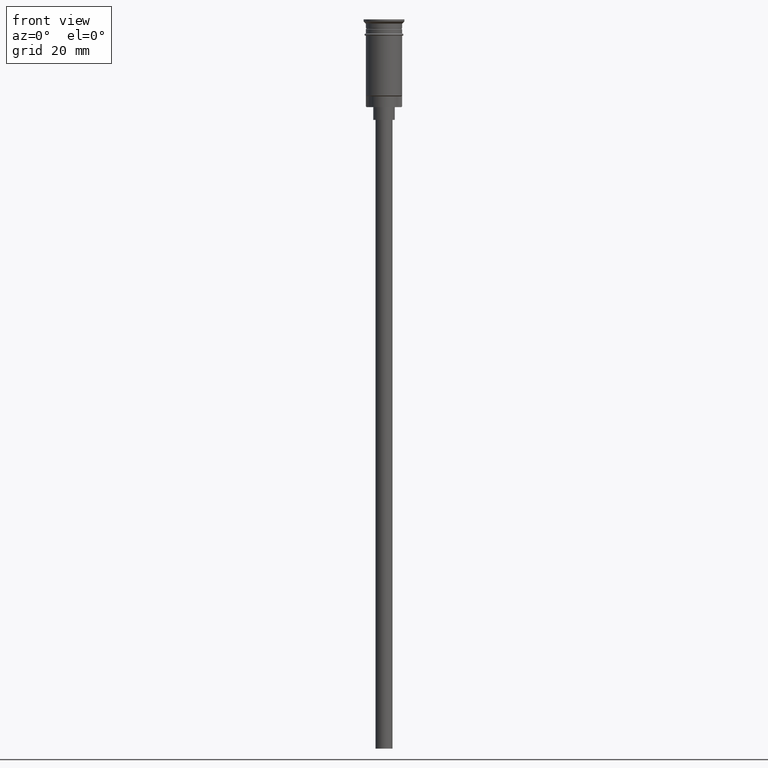
[diagram: clean part render]
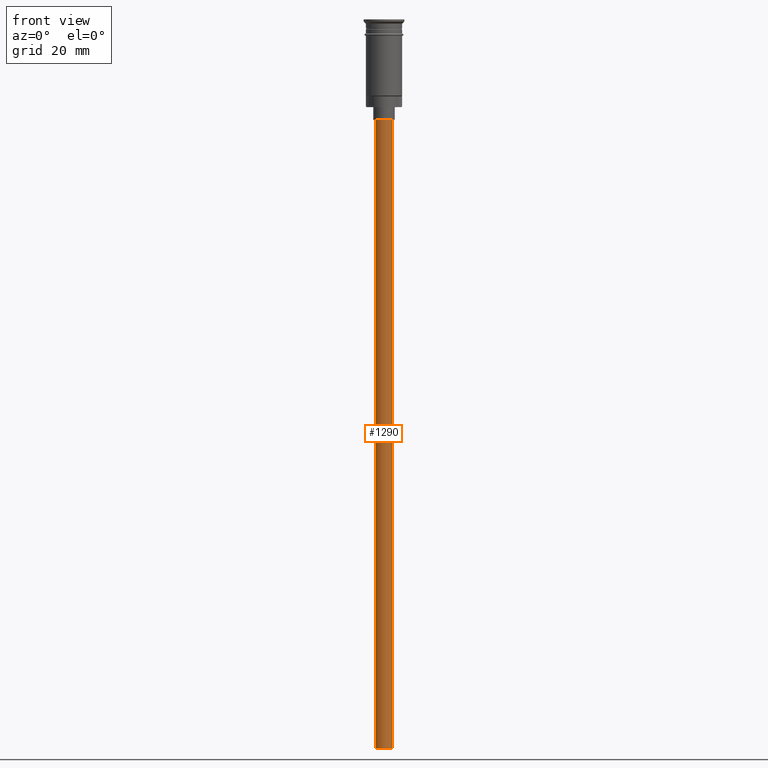
[diagram: same view with one face highlighted and labeled with its STEP entity id]
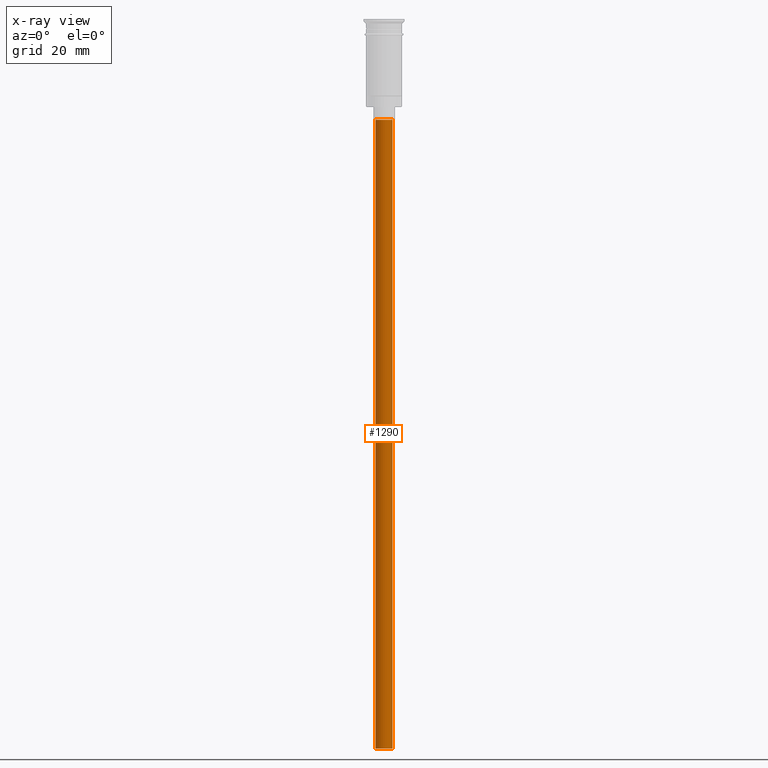
[diagram: x-ray of the same camera — body ghosted, the highlighted face saturated]
A machine part, front view. The second image highlights one B-rep face of the part: STEP entity #1290.
The next image is the same camera in x-ray: the body ghosted, the highlighted face saturated — about 0% of this face is hidden behind the body in this view.
In plain terms, the highlighted cylindrical surface (edge-blend (fillet) strip) has radius 2 mm, axis along (-0, -0, 1).
Its self-contained STEP definition (entity closure, byte-faithful):
#72 = ORIENTED_EDGE ( 'NONE', *, *, #785, .F. ) ;
#76 = VERTEX_POINT ( 'NONE', #768 ) ;
#175 = DIRECTION ( 'NONE',  ( 0.000000000000000000, 0.000000000000000000, -1.000000000000000000 ) ) ;
#176 = DIRECTION ( 'NONE',  ( -0.000000000000000000, -0.000000000000000000, 1.000000000000000000 ) ) ;
#214 = CARTESIAN_POINT ( 'NONE',  ( -2.000000000000000000, 2.449293598294706414E-16, -23.49999999999999645 ) ) ;
#281 = DIRECTION ( 'NONE',  ( -1.000000000000000000, 0.000000000000000000, 0.000000000000000000 ) ) ;
#324 = CARTESIAN_POINT ( 'NONE',  ( -2.000000000000000000, 2.449293598294706414E-16, -170.4999999999999716 ) ) ;
#329 = ORIENTED_EDGE ( 'NONE', *, *, #930, .T. ) ;
#392 = ORIENTED_EDGE ( 'NONE', *, *, #1205, .F. ) ;
#424 = ORIENTED_EDGE ( 'NONE', *, *, #733, .T. ) ;
#448 = AXIS2_PLACEMENT_3D ( 'NONE', #1229, #1500, #999 ) ;
#471 = DIRECTION ( 'NONE',  ( 1.000000000000000000, 0.000000000000000000, 0.000000000000000000 ) ) ;
#495 = CARTESIAN_POINT ( 'NONE',  ( -2.000000000000000000, 2.449293598294706414E-16, -170.4999999999999716 ) ) ;
#526 = CIRCLE ( 'NONE', #709, 2.000000000000000000 ) ;
#559 = CYLINDRICAL_SURFACE ( 'NONE', #939, 2.000000000000000000 ) ;
#638 = EDGE_LOOP ( 'NONE', ( #72, #392, #424, #329 ) ) ;
#645 = CARTESIAN_POINT ( 'NONE',  ( 0.000000000000000000, 0.000000000000000000, -170.4999999999999716 ) ) ;
#663 = CARTESIAN_POINT ( 'NONE',  ( 2.000000000000000000, 0.000000000000000000, -170.4999999999999716 ) ) ;
#709 = AXIS2_PLACEMENT_3D ( 'NONE', #645, #175, #281 ) ;
#733 = EDGE_CURVE ( 'NONE', #76, #856, #1408, .T. ) ;
#768 = CARTESIAN_POINT ( 'NONE',  ( 2.000000000000000000, 0.000000000000000000, -170.4999999999999716 ) ) ;
#785 = EDGE_CURVE ( 'NONE', #1476, #1242, #1573, .T. ) ;
#825 = DIRECTION ( 'NONE',  ( -0.000000000000000000, -0.000000000000000000, 1.000000000000000000 ) ) ;
#830 = DIRECTION ( 'NONE',  ( -0.000000000000000000, -0.000000000000000000, 1.000000000000000000 ) ) ;
#856 = VERTEX_POINT ( 'NONE', #955 ) ;
#930 = EDGE_CURVE ( 'NONE', #856, #1242, #1171, .T. ) ;
#939 = AXIS2_PLACEMENT_3D ( 'NONE', #1313, #830, #471 ) ;
#955 = CARTESIAN_POINT ( 'NONE',  ( 2.000000000000000000, 0.000000000000000000, -23.49999999999999645 ) ) ;
#995 = VECTOR ( 'NONE', #176, 1000.000000000000000 ) ;
#999 = DIRECTION ( 'NONE',  ( -1.000000000000000000, 0.000000000000000000, 0.000000000000000000 ) ) ;
#1021 = VECTOR ( 'NONE', #825, 1000.000000000000000 ) ;
#1073 = FACE_OUTER_BOUND ( 'NONE', #638, .T. ) ;
#1171 = CIRCLE ( 'NONE', #448, 2.000000000000000000 ) ;
#1205 = EDGE_CURVE ( 'NONE', #76, #1476, #526, .T. ) ;
#1229 = CARTESIAN_POINT ( 'NONE',  ( 0.000000000000000000, 0.000000000000000000, -23.49999999999999645 ) ) ;
#1242 = VERTEX_POINT ( 'NONE', #214 ) ;
#1290 = ADVANCED_FACE ( 'NONE', ( #1073 ), #559, .T. ) ;
#1313 = CARTESIAN_POINT ( 'NONE',  ( 0.000000000000000000, 0.000000000000000000, -170.4999999999999716 ) ) ;
#1408 = LINE ( 'NONE', #663, #995 ) ;
#1476 = VERTEX_POINT ( 'NONE', #495 ) ;
#1500 = DIRECTION ( 'NONE',  ( 0.000000000000000000, 0.000000000000000000, -1.000000000000000000 ) ) ;
#1573 = LINE ( 'NONE', #324, #1021 ) ;